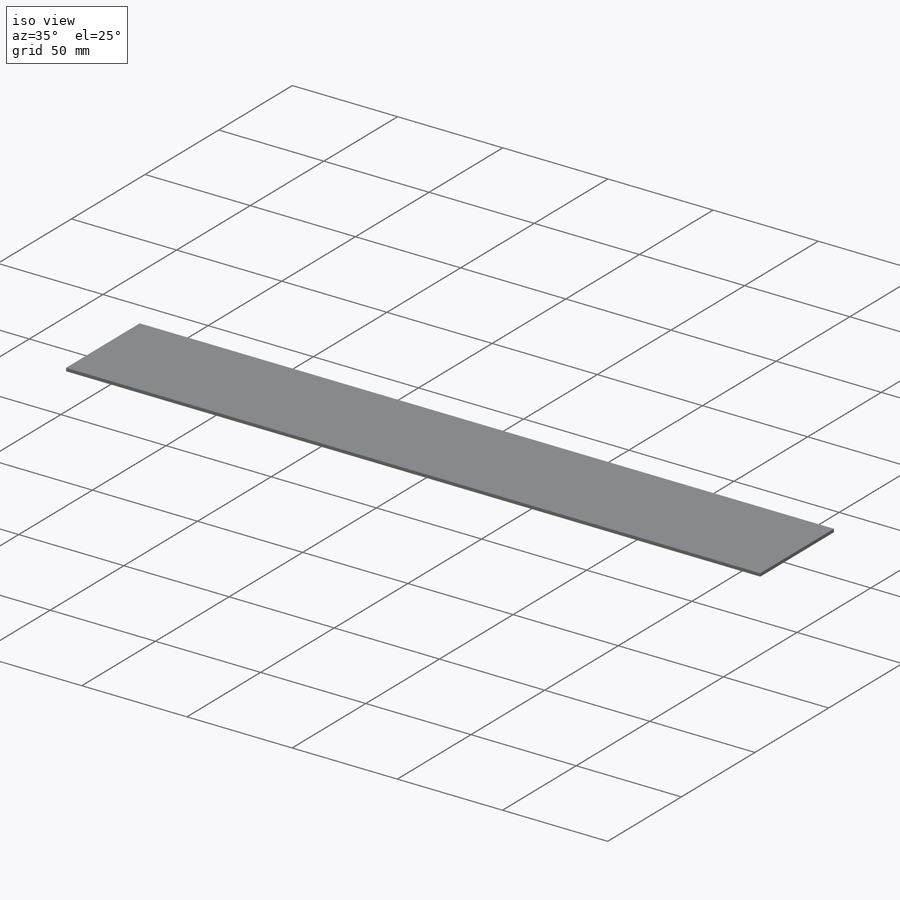
[diagram: iso view]
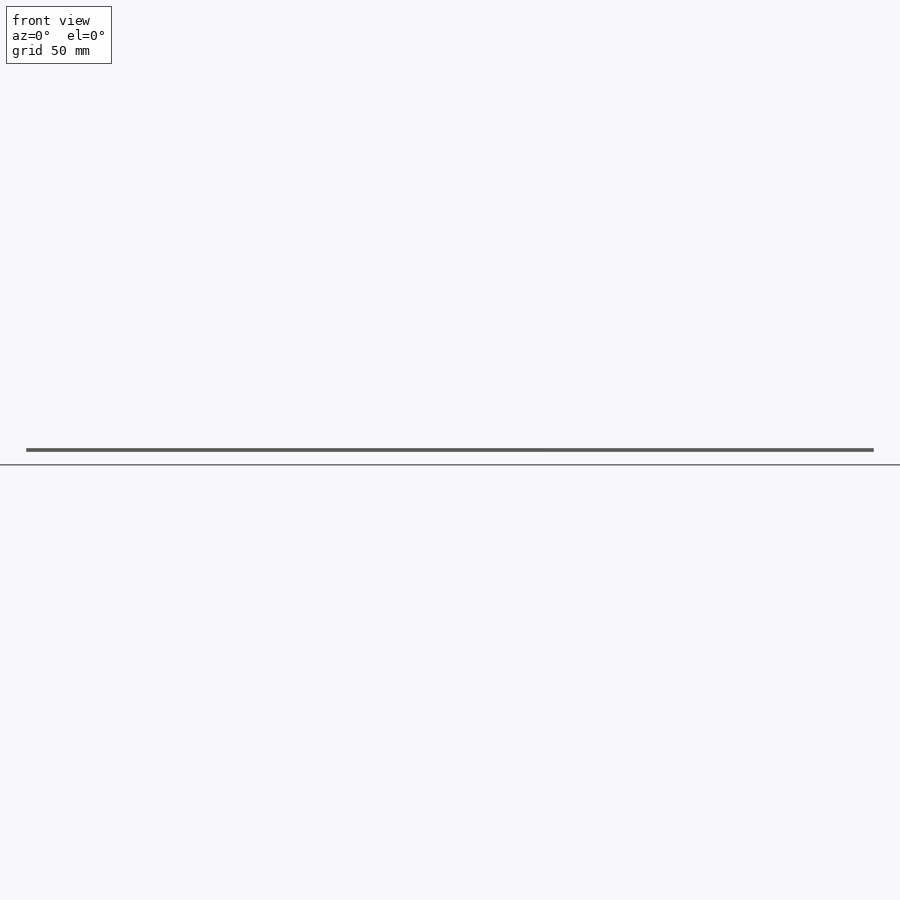
[diagram: front view]
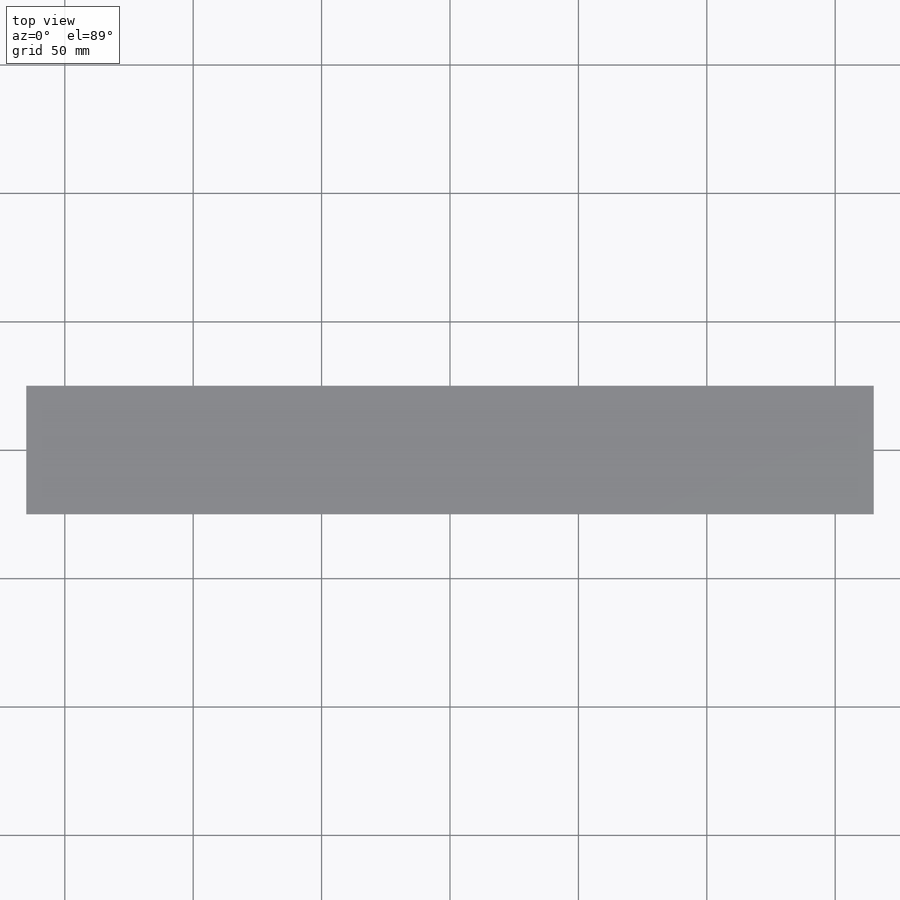
[diagram: top view]
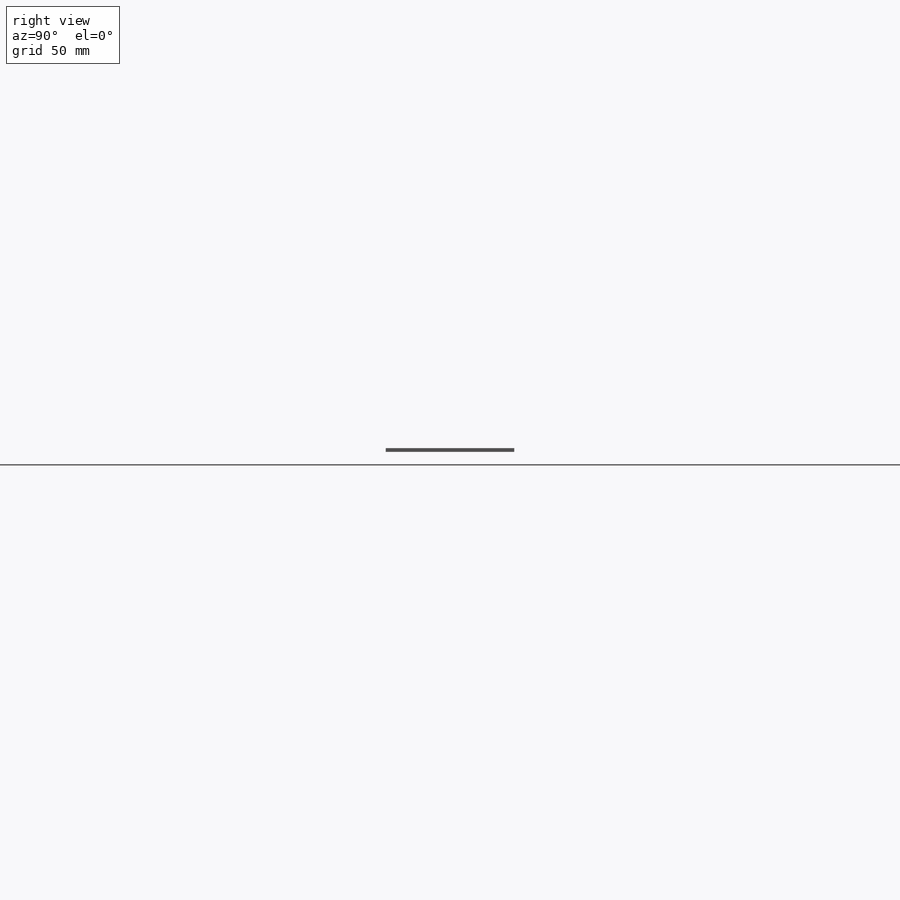
[diagram: right view]
SOLIDWORKS PART (.sldprt)
format: sldprt  version: not decoded by parser v0  size: 172,032 bytes
history: native  units: mm
features: sketch x6, sheet_metal_op x2, hole x2, material x1 + 1 further entry (+17 scaffold rows collapsed; 1 parser-record rows omitted)
feature tree (30):
  scaffold x17  (default folders/planes/origin — collapsed)
  material  "Material <not specified>"
  sketch  "Sketch1"  dims[c1.D1=~140.207679mm c2.D1=330.0mm]
  sheet_metal_op  "Sheet-Metal1"  Thickness=1.5mm
  sheet_metal_op  "Base-Flange1"
  hole  "M4 Clearance Hole1"  Diameter=4.5mm Depth=1.5mm
  sketch  "Sketch2"
  sketch  "Sketch3"  dims[hole-wizard template sketch: 60 standard entries collapsed; hole parameters kept: c18.Thru Hole Depth=1.5mm]
  hole  "M4 Clearance Hole2"  Diameter=4.5mm Depth=3.1mm
  sketch  "Sketch4"
  sketch  "Sketch5"  dims[hole-wizard template sketch: 60 standard entries collapsed; hole parameters kept: c18.Thru Hole Depth=3.1mm]
  "Flat-Pattern1"
  sketch  "Bend-Lines1"
  parser-record x1  (decoder bookkeeping rows leaked as tree rows — omitted from the tree; the rows remain in map.json)
decode coverage: 6 of 10 modeling features carry decoded parameters; 1 rows unclassified (native names shown)
note: ~ marks probable driven/reference dimensions
note: suppression state not decoded; provenance and decode notes live in map.json
